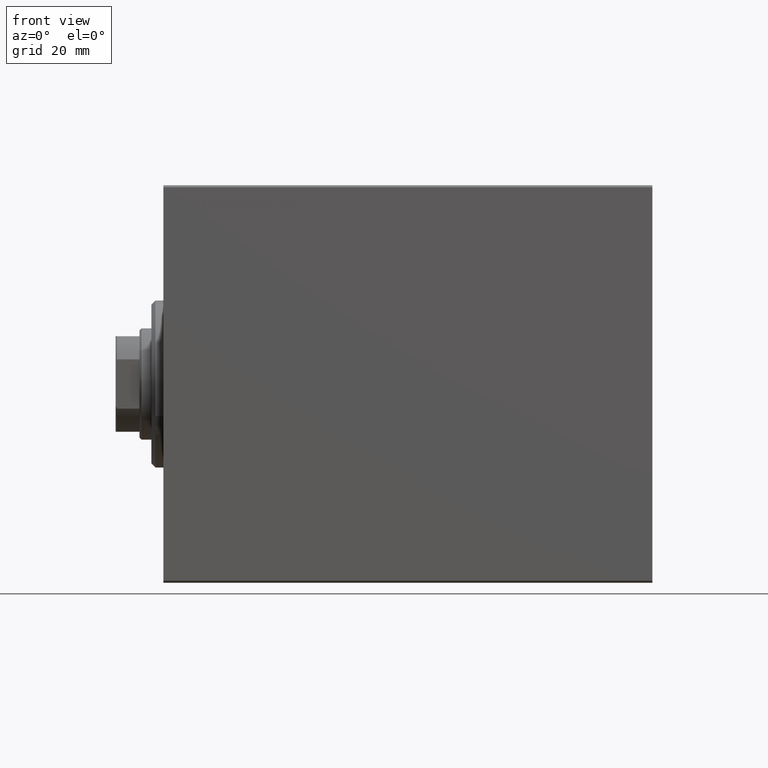
[diagram: clean part render]
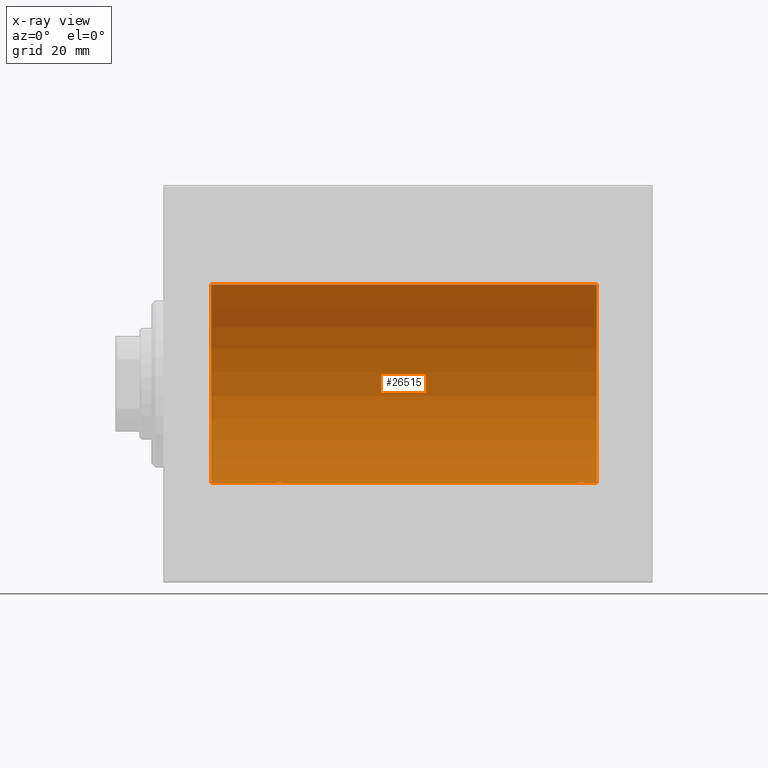
[diagram: x-ray — body ghosted, one internal face saturated and labeled with its STEP entity id]
A machine part, front view, then the same camera in x-ray: the body is ghosted and one INTERNAL B-rep face — a face not visible from any outside direction — is saturated and labeled: STEP entity #26515.
In plain terms, the highlighted cylindrical surface (partial cylindrical patch) has radius 25 mm, axis along (-1, -0, -0).
Its self-contained STEP definition (entity closure, byte-faithful):
#300 = CARTESIAN_POINT ( 'NONE',  ( 107.4836411501431144, 0.3289998300458059077, -24.99834914448731737 ) ) ;
#1186 = CARTESIAN_POINT ( 'NONE',  ( 102.7534832117912913, 1.109060198064593106, -24.97584694923137860 ) ) ;
#1407 = CARTESIAN_POINT ( 'NONE',  ( 109.0000000000000000, 3.061616997868383043E-15, -25.00000000000000000 ) ) ;
#1992 = CARTESIAN_POINT ( 'NONE',  ( 30.98758834612092983, 1.525124164792373671, -24.95380474534676907 ) ) ;
#2090 = ORIENTED_EDGE ( 'NONE', *, *, #21641, .T. ) ;
#2398 = DIRECTION ( 'NONE',  ( -1.000000000000000000, -0.000000000000000000, -0.000000000000000000 ) ) ;
#2478 = CARTESIAN_POINT ( 'NONE',  ( 11.99999999999999645, 0.000000000000000000, 0.000000000000000000 ) ) ;
#2817 = CARTESIAN_POINT ( 'NONE',  ( 31.16861818252479921, 1.254434665533508797, -24.96887599906795785 ) ) ;
#3636 = CARTESIAN_POINT ( 'NONE',  ( 104.8359203062326372, 2.499940606140144794, -24.87469189697262095 ) ) ;
#3848 = CARTESIAN_POINT ( 'NONE',  ( 104.6736255077265696, 2.484060984458450694, -24.87630362147114127 ) ) ;
#4060 = VERTEX_POINT ( 'NONE', #10015 ) ;
#4301 = CARTESIAN_POINT ( 'NONE',  ( 105.3280177227500616, 2.483775543901345362, -24.87633190989611265 ) ) ;
#4877 = CARTESIAN_POINT ( 'NONE',  ( 27.34785002149174815, 1.883339088673197770, -24.92922739080161065 ) ) ;
#5010 = CARTESIAN_POINT ( 'NONE',  ( 11.99999999999999645, 3.061616997868383043E-15, -25.00000000000000000 ) ) ;
#5787 = ORIENTED_EDGE ( 'NONE', *, *, #20282, .F. ) ;
#6023 = CYLINDRICAL_SURFACE ( 'NONE', #7266, 25.00000000000000000 ) ;
#7202 = CARTESIAN_POINT ( 'NONE',  ( 106.8842330192998986, 1.651337078997086261, -24.94567646296264840 ) ) ;
#7266 = AXIS2_PLACEMENT_3D ( 'NONE', #23422, #43924, #20091 ) ;
#7414 = CARTESIAN_POINT ( 'NONE',  ( 103.1173028702410619, 1.652881481536641273, -24.94556728625771669 ) ) ;
#7453 = ORIENTED_EDGE ( 'NONE', *, *, #25497, .F. ) ;
#7871 = CARTESIAN_POINT ( 'NONE',  ( 102.5000000000000000, 0.1652919547268336953, -25.00000000000000000 ) ) ;
#8094 = CARTESIAN_POINT ( 'NONE',  ( 102.6279360854240679, 0.8063280894284498013, -24.98745245851526064 ) ) ;
#8221 = CARTESIAN_POINT ( 'NONE',  ( 27.01175333178059290, 1.524323445682836953, -24.95385641887458661 ) ) ;
#8451 = CARTESIAN_POINT ( 'NONE',  ( 26.83029543590130928, 1.252624798282891971, -24.96896960740658500 ) ) ;
#8682 = CARTESIAN_POINT ( 'NONE',  ( 29.32801772275002605, 2.483775543901343585, -24.87633190989611265 ) ) ;
#8754 = CARTESIAN_POINT ( 'NONE',  ( 109.0000000000000000, 0.000000000000000000, 25.00000000000000000 ) ) ;
#9068 = DIRECTION ( 'NONE',  ( -1.000000000000000000, -0.000000000000000000, -0.000000000000000000 ) ) ;
#9721 = CARTESIAN_POINT ( 'NONE',  ( 26.62793608542407853, 0.8063280894284485800, -24.98745245851526064 ) ) ;
#10015 = CARTESIAN_POINT ( 'NONE',  ( 102.5000000000000000, -1.076612927118312630E-14, -25.00000000000000000 ) ) ;
#10774 = CARTESIAN_POINT ( 'NONE',  ( 104.3508348400067547, 2.419847904056441124, -24.88263203448060423 ) ) ;
#11347 = ORIENTED_EDGE ( 'NONE', *, *, #21378, .T. ) ;
#11387 = CARTESIAN_POINT ( 'NONE',  ( 109.0000000000000000, 3.061616997868383043E-15, -25.00000000000000000 ) ) ;
#11433 = CIRCLE ( 'NONE', #12160, 25.00000000000000000 ) ;
#11573 = CARTESIAN_POINT ( 'NONE',  ( 30.88423301929986664, 1.651337078997087593, -24.94567646296264485 ) ) ;
#11798 = CARTESIAN_POINT ( 'NONE',  ( 29.64874342732638723, 2.419890192637125459, -24.88262770889313913 ) ) ;
#11818 = VECTOR ( 'NONE', #39913, 1000.000000000000000 ) ;
#12029 = CARTESIAN_POINT ( 'NONE',  ( 28.35083484000673693, 2.419847904056437127, -24.88263203448060423 ) ) ;
#12160 = AXIS2_PLACEMENT_3D ( 'NONE', #2478, #15206, #16081 ) ;
#12553 = VERTEX_POINT ( 'NONE', #13916 ) ;
#13097 = CARTESIAN_POINT ( 'NONE',  ( 109.0000000000000000, 3.061616997868383043E-15, -25.00000000000000000 ) ) ;
#13125 = EDGE_CURVE ( 'NONE', #14816, #12553, #33378, .T. ) ;
#13286 = CARTESIAN_POINT ( 'NONE',  ( 109.0000000000000000, 0.000000000000000000, 25.00000000000000000 ) ) ;
#13916 = CARTESIAN_POINT ( 'NONE',  ( 11.99999999999999645, 0.000000000000000000, 25.00000000000000000 ) ) ;
#14128 = CARTESIAN_POINT ( 'NONE',  ( 103.0117533317805822, 1.524323445682837841, -24.95385641887458661 ) ) ;
#14352 = CARTESIAN_POINT ( 'NONE',  ( 107.1686181825248099, 1.254434665533512128, -24.96887599906796495 ) ) ;
#14535 = VERTEX_POINT ( 'NONE', #5010 ) ;
#14573 = CARTESIAN_POINT ( 'NONE',  ( 106.5245034418717722, 1.988066470813653286, -24.92099187803979632 ) ) ;
#14802 = CARTESIAN_POINT ( 'NONE',  ( 104.1931641111286524, 2.371819214216754901, -24.88731391344728294 ) ) ;
#14816 = VERTEX_POINT ( 'NONE', #8754 ) ;
#15206 = DIRECTION ( 'NONE',  ( -1.000000000000000000, 0.000000000000000000, 0.000000000000000000 ) ) ;
#15594 = CARTESIAN_POINT ( 'NONE',  ( 31.41966436084114989, 0.6495680347195884607, -24.99207398768918864 ) ) ;
#16081 = DIRECTION ( 'NONE',  ( 0.000000000000000000, 0.000000000000000000, 1.000000000000000000 ) ) ;
#16508 = EDGE_CURVE ( 'NONE', #18900, #21348, #22922, .T. ) ;
#17255 = CARTESIAN_POINT ( 'NONE',  ( 102.5000000000000000, -1.076612927118312630E-14, -25.00000000000000000 ) ) ;
#17462 = CARTESIAN_POINT ( 'NONE',  ( 105.6487434273263943, 2.419890192637123683, -24.88262770889313913 ) ) ;
#17652 = B_SPLINE_CURVE_WITH_KNOTS ( 'NONE', 3,
 ( #17255, #7871, #25036, #38430, #8094, #1186, #24586, #14128, #7414, #27490, #34413, #27720, #38203, #14802, #10774, #3848, #3636, #34633, #4301, #17462, #31280, #28164, #35086, #14573, #41759, #7202, #21488, #14352, #28389, #21265, #17918, #300, #31725, #27939 ),
 .UNSPECIFIED., .F., .F.,
 ( 4, 2, 2, 2, 2, 2, 2, 2, 2, 2, 2, 2, 2, 2, 2, 2, 4 ),
 ( 2.589209053395158452E-18, 0.0004888140276038976419, 0.0009776280552077924648, 0.001466442082811687071, 0.001955256110415581894, 0.002444070138019476934, 0.002932884165623371540, 0.003421698193227267013, 0.003910512220831162053, 0.004399326248435056659, 0.004888140276038952133, 0.005376954303642846739, 0.005865768331246741345, 0.006354582358850637686, 0.006843396386454532292, 0.007332210414058427765, 0.007821024441662320636 ),
 .UNSPECIFIED. ) ;
#17698 = VECTOR ( 'NONE', #2398, 1000.000000000000000 ) ;
#17918 = CARTESIAN_POINT ( 'NONE',  ( 107.4196643608411676, 0.6495680347195889048, -24.99207398768919219 ) ) ;
#18498 = CARTESIAN_POINT ( 'NONE',  ( 30.65075206354793380, 1.884745564839661158, -24.92912799315484662 ) ) ;
#18900 = VERTEX_POINT ( 'NONE', #1407 ) ;
#18950 = CARTESIAN_POINT ( 'NONE',  ( 29.16226476613383056, 2.500059064463610703, -24.87467999146394959 ) ) ;
#19470 = B_SPLINE_CURVE_WITH_KNOTS ( 'NONE', 3,
 ( #28740, #42570, #25395, #22294, #9721, #35883, #8451, #8221, #28520, #4877, #42335, #22065, #26658, #39239, #12029, #38776, #23332, #18950, #8682, #11798, #21840, #28967, #32770, #32544, #18498, #11573, #1992, #2817, #40280, #25165, #15594, #29192, #36932, #42794 ),
 .UNSPECIFIED., .F., .F.,
 ( 4, 2, 2, 2, 2, 2, 2, 2, 2, 2, 2, 2, 2, 2, 2, 2, 4 ),
 ( 2.506055851151142347E-19, 0.0004888140276038939556, 0.0009776280552077876943, 0.001466442082811681433, 0.001955256110415575389, 0.002444070138019469127, 0.002932884165623362866, 0.003421698193227256605, 0.003910512220831149910, 0.004399326248435043649, 0.004888140276038937387, 0.005376954303642831126, 0.005865768331246724865, 0.006354582358850618604, 0.006843396386454512342, 0.007332210414058406081, 0.007821024441662299820 ),
 .UNSPECIFIED. ) ;
#20065 = CARTESIAN_POINT ( 'NONE',  ( 109.0000000000000000, 3.061616997868383043E-15, -25.00000000000000000 ) ) ;
#20091 = DIRECTION ( 'NONE',  ( 0.000000000000000000, 0.000000000000000000, 1.000000000000000000 ) ) ;
#20226 = ORIENTED_EDGE ( 'NONE', *, *, #13125, .T. ) ;
#20282 = EDGE_CURVE ( 'NONE', #14816, #18900, #39911, .T. ) ;
#21265 = CARTESIAN_POINT ( 'NONE',  ( 107.3723710919858121, 0.8054273576766407539, -24.98748174524255106 ) ) ;
#21348 = VERTEX_POINT ( 'NONE', #34831 ) ;
#21378 = EDGE_CURVE ( 'NONE', #12553, #14535, #11433, .T. ) ;
#21488 = CARTESIAN_POINT ( 'NONE',  ( 106.9875883461209298, 1.525124164792377890, -24.95380474534677262 ) ) ;
#21641 = EDGE_CURVE ( 'NONE', #29189, #34722, #19470, .T. ) ;
#21840 = CARTESIAN_POINT ( 'NONE',  ( 29.80463913299814038, 2.372637051600632319, -24.88723676875459034 ) ) ;
#22065 = CARTESIAN_POINT ( 'NONE',  ( 27.74695886470063400, 2.169541443998013630, -24.90585268157804677 ) ) ;
#22294 = CARTESIAN_POINT ( 'NONE',  ( 26.57980964520840672, 0.6474866336855753524, -24.99212517028518121 ) ) ;
#22774 = CARTESIAN_POINT ( 'NONE',  ( 31.50000000000000000, 3.061616978460191625E-15, -25.00000000000000000 ) ) ;
#22922 = LINE ( 'NONE', #13097, #17698 ) ;
#23332 = CARTESIAN_POINT ( 'NONE',  ( 28.83592030623262659, 2.499940606140140353, -24.87469189697262095 ) ) ;
#23422 = CARTESIAN_POINT ( 'NONE',  ( 109.0000000000000000, 0.000000000000000000, 0.000000000000000000 ) ) ;
#24586 = CARTESIAN_POINT ( 'NONE',  ( 102.8302954359012773, 1.252624798282892193, -24.96896960740657789 ) ) ;
#24980 = DIRECTION ( 'NONE',  ( -1.000000000000000000, -0.000000000000000000, -0.000000000000000000 ) ) ;
#25036 = CARTESIAN_POINT ( 'NONE',  ( 102.5162313173084243, 0.3278008924763837761, -24.99836206720144460 ) ) ;
#25048 = EDGE_CURVE ( 'NONE', #4060, #21348, #17652, .T. ) ;
#25165 = CARTESIAN_POINT ( 'NONE',  ( 31.37237109198581209, 0.8054273576766401987, -24.98748174524255461 ) ) ;
#25395 = CARTESIAN_POINT ( 'NONE',  ( 26.51623131730843141, 0.3278008924763852749, -24.99836206720144105 ) ) ;
#25497 = EDGE_CURVE ( 'NONE', #29189, #14535, #41926, .T. ) ;
#26515 = ADVANCED_FACE ( 'NONE', ( #30107 ), #6023, .F. ) ;
#26658 = CARTESIAN_POINT ( 'NONE',  ( 27.89234004476096729, 2.247131495942868096, -24.89888190765473297 ) ) ;
#27490 = CARTESIAN_POINT ( 'NONE',  ( 103.3478500214917233, 1.883339088673203765, -24.92922739080160355 ) ) ;
#27720 = CARTESIAN_POINT ( 'NONE',  ( 103.7469588647006447, 2.169541443998018959, -24.90585268157804677 ) ) ;
#27939 = CARTESIAN_POINT ( 'NONE',  ( 107.5000000000000000, 3.061616978466108082E-15, -25.00000000000000000 ) ) ;
#28164 = CARTESIAN_POINT ( 'NONE',  ( 106.1074523681979542, 2.247309494740959757, -24.89886665287248135 ) ) ;
#28389 = CARTESIAN_POINT ( 'NONE',  ( 107.2469237640895301, 1.108237982093041696, -24.97588368351298627 ) ) ;
#28520 = CARTESIAN_POINT ( 'NONE',  ( 27.11730287024108677, 1.652881481536634833, -24.94556728625771669 ) ) ;
#28692 = ORIENTED_EDGE ( 'NONE', *, *, #33074, .F. ) ;
#28740 = CARTESIAN_POINT ( 'NONE',  ( 26.50000000000000355, -1.828402720252098442E-15, -25.00000000000000000 ) ) ;
#28840 = DIRECTION ( 'NONE',  ( -1.000000000000000000, 0.000000000000000000, 0.000000000000000000 ) ) ;
#28967 = CARTESIAN_POINT ( 'NONE',  ( 30.10745236819796133, 2.247309494740957980, -24.89886665287248135 ) ) ;
#29011 = CARTESIAN_POINT ( 'NONE',  ( 26.50000000000000355, -1.828402720252098442E-15, -25.00000000000000000 ) ) ;
#29189 = VERTEX_POINT ( 'NONE', #29011 ) ;
#29192 = CARTESIAN_POINT ( 'NONE',  ( 31.48364115014310727, 0.3289998300458069624, -24.99834914448732448 ) ) ;
#30082 = LINE ( 'NONE', #20065, #11818 ) ;
#30107 = FACE_OUTER_BOUND ( 'NONE', #42224, .T. ) ;
#30385 = DIRECTION ( 'NONE',  ( 0.000000000000000000, 0.000000000000000000, 1.000000000000000000 ) ) ;
#31280 = CARTESIAN_POINT ( 'NONE',  ( 105.8046391329981475, 2.372637051600634539, -24.88723676875459034 ) ) ;
#31725 = CARTESIAN_POINT ( 'NONE',  ( 107.4999999999999716, 0.1632133729155569035, -24.99999999999999645 ) ) ;
#32544 = CARTESIAN_POINT ( 'NONE',  ( 30.52450344187178644, 1.988066470813646403, -24.92099187803979987 ) ) ;
#32770 = CARTESIAN_POINT ( 'NONE',  ( 30.25371533481192898, 2.169035936979791135, -24.90589343070811168 ) ) ;
#33074 = EDGE_CURVE ( 'NONE', #4060, #34722, #30082, .T. ) ;
#33378 = LINE ( 'NONE', #13286, #35577 ) ;
#34413 = CARTESIAN_POINT ( 'NONE',  ( 103.4736649648765763, 1.986787236855552363, -24.92109717386377099 ) ) ;
#34633 = CARTESIAN_POINT ( 'NONE',  ( 105.1622647661338306, 2.500059064463613367, -24.87467999146394959 ) ) ;
#34722 = VERTEX_POINT ( 'NONE', #22774 ) ;
#34831 = CARTESIAN_POINT ( 'NONE',  ( 107.5000000000000000, 3.061616978466108082E-15, -25.00000000000000000 ) ) ;
#35086 = CARTESIAN_POINT ( 'NONE',  ( 106.2537153348119290, 2.169035936979797796, -24.90589343070811168 ) ) ;
#35577 = VECTOR ( 'NONE', #9068, 1000.000000000000000 ) ;
#35883 = CARTESIAN_POINT ( 'NONE',  ( 26.75348321179130195, 1.109060198064591996, -24.97584694923138215 ) ) ;
#36438 = ORIENTED_EDGE ( 'NONE', *, *, #16508, .F. ) ;
#36932 = CARTESIAN_POINT ( 'NONE',  ( 31.50000000000000711, 0.1632133729155569590, -25.00000000000000355 ) ) ;
#38203 = CARTESIAN_POINT ( 'NONE',  ( 103.8923400447609566, 2.247131495942870760, -24.89888190765472942 ) ) ;
#38430 = CARTESIAN_POINT ( 'NONE',  ( 102.5798096452083854, 0.6474866336855743532, -24.99212517028519187 ) ) ;
#38776 = CARTESIAN_POINT ( 'NONE',  ( 28.67362550772655183, 2.484060984458447141, -24.87630362147113772 ) ) ;
#39239 = CARTESIAN_POINT ( 'NONE',  ( 28.19316411112866660, 2.371819214216752680, -24.88731391344728294 ) ) ;
#39911 = CIRCLE ( 'NONE', #41277, 25.00000000000000000 ) ;
#39913 = DIRECTION ( 'NONE',  ( -1.000000000000000000, -0.000000000000000000, -0.000000000000000000 ) ) ;
#40038 = VECTOR ( 'NONE', #24980, 1000.000000000000000 ) ;
#40280 = CARTESIAN_POINT ( 'NONE',  ( 31.24692376408954075, 1.108237982093039697, -24.97588368351298627 ) ) ;
#41277 = AXIS2_PLACEMENT_3D ( 'NONE', #43342, #28840, #30385 ) ;
#41759 = CARTESIAN_POINT ( 'NONE',  ( 106.6507520635479409, 1.884745564839660714, -24.92912799315484662 ) ) ;
#41926 = LINE ( 'NONE', #11387, #40038 ) ;
#42224 = EDGE_LOOP ( 'NONE', ( #36438, #5787, #20226, #11347, #7453, #2090, #28692, #43549 ) ) ;
#42335 = CARTESIAN_POINT ( 'NONE',  ( 27.47366496487658338, 1.986787236855548144, -24.92109717386378165 ) ) ;
#42570 = CARTESIAN_POINT ( 'NONE',  ( 26.50000000000000355, 0.1652919547268401901, -24.99999999999999289 ) ) ;
#42794 = CARTESIAN_POINT ( 'NONE',  ( 31.50000000000000000, 3.061616978460191625E-15, -25.00000000000000000 ) ) ;
#43342 = CARTESIAN_POINT ( 'NONE',  ( 109.0000000000000000, 0.000000000000000000, 0.000000000000000000 ) ) ;
#43549 = ORIENTED_EDGE ( 'NONE', *, *, #25048, .T. ) ;
#43924 = DIRECTION ( 'NONE',  ( -1.000000000000000000, -0.000000000000000000, -0.000000000000000000 ) ) ;